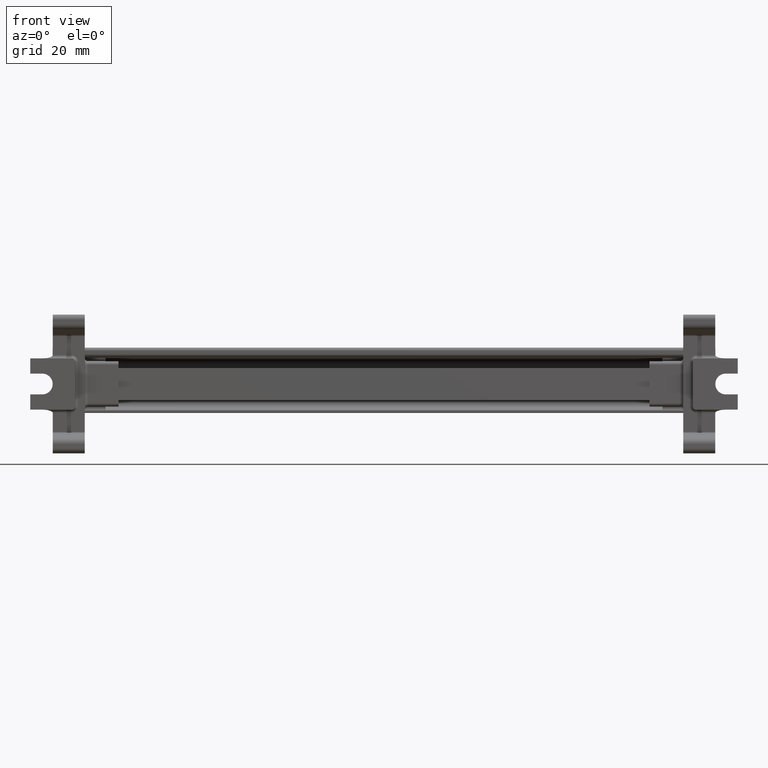
[diagram: clean part render]
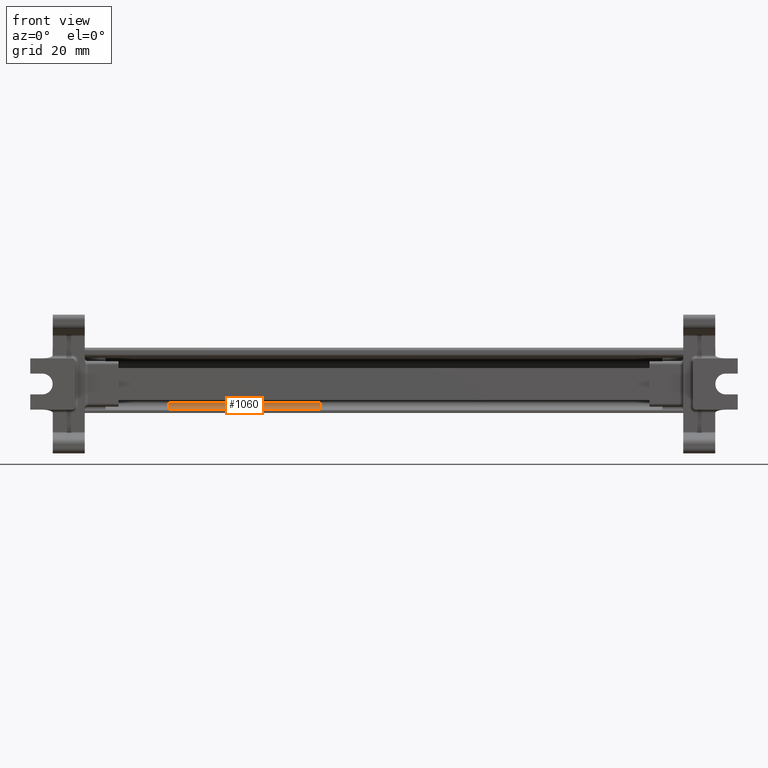
[diagram: same view with one face highlighted and labeled with its STEP entity id]
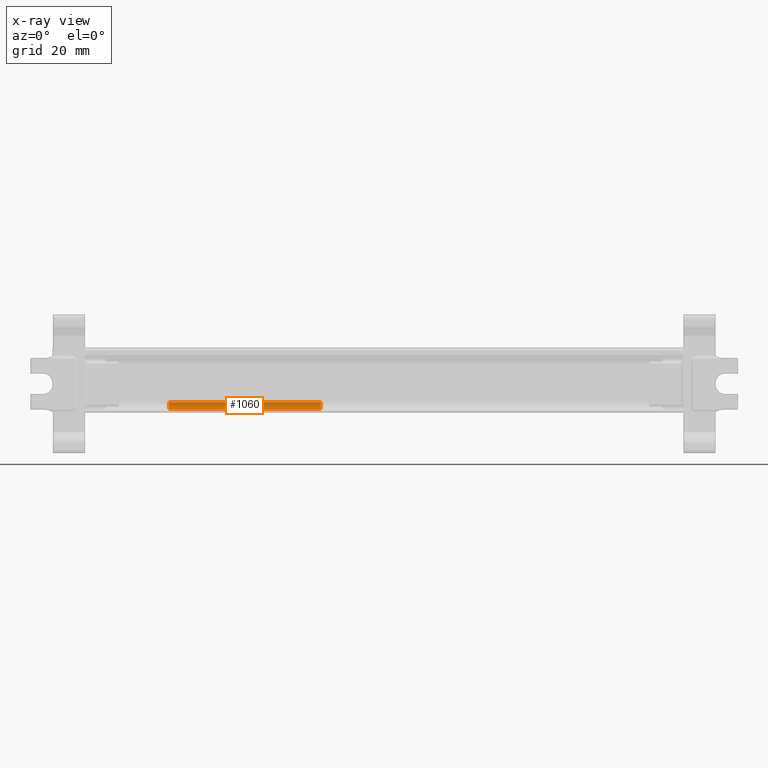
[diagram: x-ray of the same camera — body ghosted, the highlighted face saturated]
A machine part, front view. The second image highlights one B-rep face of the part: STEP entity #1060.
The next image is the same camera in x-ray: the body ghosted, the highlighted face saturated — about 0% of this face is hidden behind the body in this view.
In plain terms, the highlighted cylindrical surface (edge-blend (fillet) strip) has radius 1.9992 mm, axis along (-1, 0, 0).
Its self-contained STEP definition (entity closure, byte-faithful):
#383 = CARTESIAN_POINT ( 'NONE',  ( -125.1751126887691896, 73.21282648293389173, 32.27655865255970014 ) ) ;
#538 = VERTEX_POINT ( 'NONE', #3859 ) ;
#1060 = ADVANCED_FACE ( 'NONE', ( #31815 ), #20223, .F. ) ;
#2790 = DIRECTION ( 'NONE',  ( -1.000000000000000000, 1.388332954642990112E-14, 1.449706643442101886E-09 ) ) ;
#3450 = LINE ( 'NONE', #9693, #36593 ) ;
#3777 = CIRCLE ( 'NONE', #41139, 1.999201665742369904 ) ;
#3859 = CARTESIAN_POINT ( 'NONE',  ( -77.92595043972129076, 73.21282648293349382, 32.27655872105714963 ) ) ;
#4081 = DIRECTION ( 'NONE',  ( -1.000000000000000000, 7.965849597368370207E-15, 1.449707686892979958E-09 ) ) ;
#4789 = EDGE_CURVE ( 'NONE', #538, #31203, #3450, .T. ) ;
#6816 = EDGE_CURVE ( 'NONE', #31203, #20551, #39732, .T. ) ;
#8645 = CARTESIAN_POINT ( 'NONE',  ( -55.81871519494689693, 71.24850969672328915, 30.27766158438949873 ) ) ;
#8773 = ORIENTED_EDGE ( 'NONE', *, *, #18365, .T. ) ;
#9693 = CARTESIAN_POINT ( 'NONE',  ( -55.81871519204890575, 73.21282648293329487, 32.27655874730974972 ) ) ;
#11535 = EDGE_LOOP ( 'NONE', ( #23367, #8773, #19175, #35445 ) ) ;
#12617 = CARTESIAN_POINT ( 'NONE',  ( -125.1751126916311989, 71.21362481719160087, 32.27655896731115348 ) ) ;
#13911 = DIRECTION ( 'NONE',  ( -1.000000000000000000, 7.965850241683890472E-15, 1.449706631854701921E-09 ) ) ;
#15760 = EDGE_CURVE ( 'NONE', #36672, #20551, #29010, .T. ) ;
#18365 = EDGE_CURVE ( 'NONE', #36672, #538, #3777, .T. ) ;
#19175 = ORIENTED_EDGE ( 'NONE', *, *, #4789, .T. ) ;
#20223 = CYLINDRICAL_SURFACE ( 'NONE', #40415, 1.999201665742361245 ) ;
#20551 = VERTEX_POINT ( 'NONE', #32172 ) ;
#23367 = ORIENTED_EDGE ( 'NONE', *, *, #15760, .F. ) ;
#23514 = VECTOR ( 'NONE', #25195, 1000.000000000000000 ) ;
#25195 = DIRECTION ( 'NONE',  ( -1.000000000000000000, 7.965850241683890472E-15, 1.449706631854701921E-09 ) ) ;
#29010 = LINE ( 'NONE', #8645, #23514 ) ;
#29732 = DIRECTION ( 'NONE',  ( 1.449707686887843787E-09, -6.107034486070678216E-07, 0.9999999999998134825 ) ) ;
#31203 = VERTEX_POINT ( 'NONE', #383 ) ;
#31394 = DIRECTION ( 'NONE',  ( -1.388332957662004499E-14, -1.000000000000000000, -2.082499436493006827E-14 ) ) ;
#31815 = FACE_OUTER_BOUND ( 'NONE', #11535, .T. ) ;
#32172 = CARTESIAN_POINT ( 'NONE',  ( -125.1751126946525972, 71.24850969672399970, 30.27766148963990034 ) ) ;
#32841 = CARTESIAN_POINT ( 'NONE',  ( -55.81871519204890575, 71.21362481719100401, 32.27655886676469521 ) ) ;
#35003 = CARTESIAN_POINT ( 'NONE',  ( -77.92595044560660256, 71.24850969672360179, 30.27766155813734983 ) ) ;
#35407 = AXIS2_PLACEMENT_3D ( 'NONE', #12617, #2790, #31394 ) ;
#35445 = ORIENTED_EDGE ( 'NONE', *, *, #6816, .T. ) ;
#36593 = VECTOR ( 'NONE', #13911, 1000.000000000000000 ) ;
#36672 = VERTEX_POINT ( 'NONE', #35003 ) ;
#37287 = CARTESIAN_POINT ( 'NONE',  ( -77.92595044258310111, 71.21362481719108928, 32.27655889881404505 ) ) ;
#37420 = DIRECTION ( 'NONE',  ( 1.000000000000000000, -6.941664758119840756E-15, -1.449706643442101886E-09 ) ) ;
#39732 = CIRCLE ( 'NONE', #35407, 1.999201665742356138 ) ;
#40415 = AXIS2_PLACEMENT_3D ( 'NONE', #32841, #4081, #29732 ) ;
#40649 = DIRECTION ( 'NONE',  ( 6.941664788309974373E-15, 1.000000000000000000, 2.082499436492992312E-14 ) ) ;
#41139 = AXIS2_PLACEMENT_3D ( 'NONE', #37287, #37420, #40649 ) ;